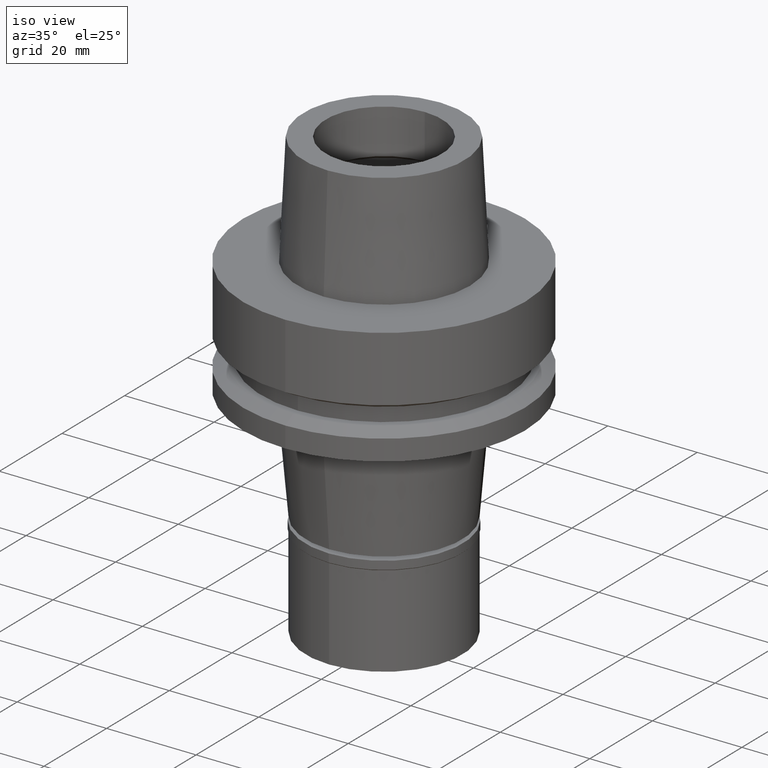
[diagram: clean part render]
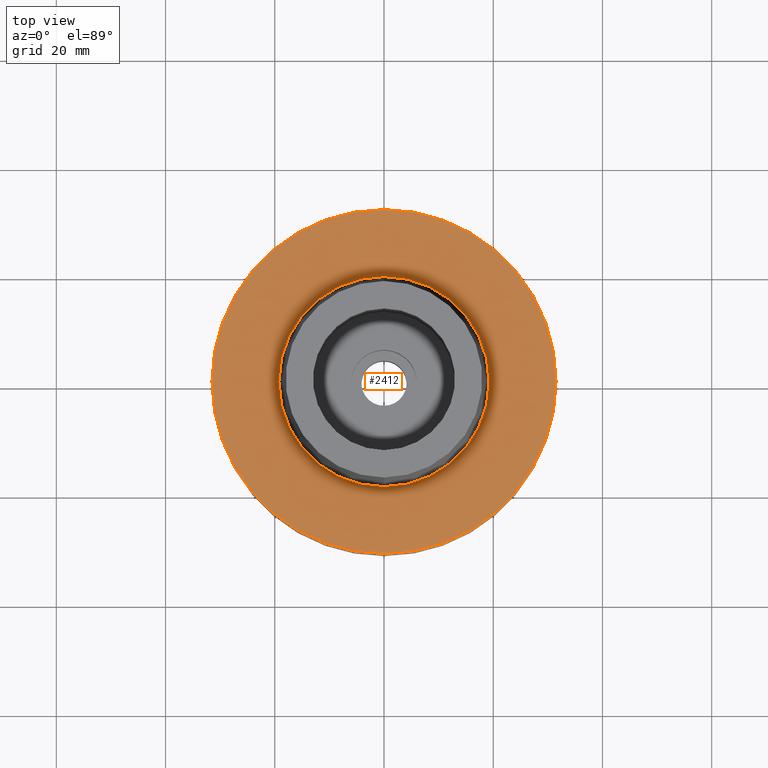
[diagram: tour spotlight — one face highlighted and labeled with its STEP entity id]
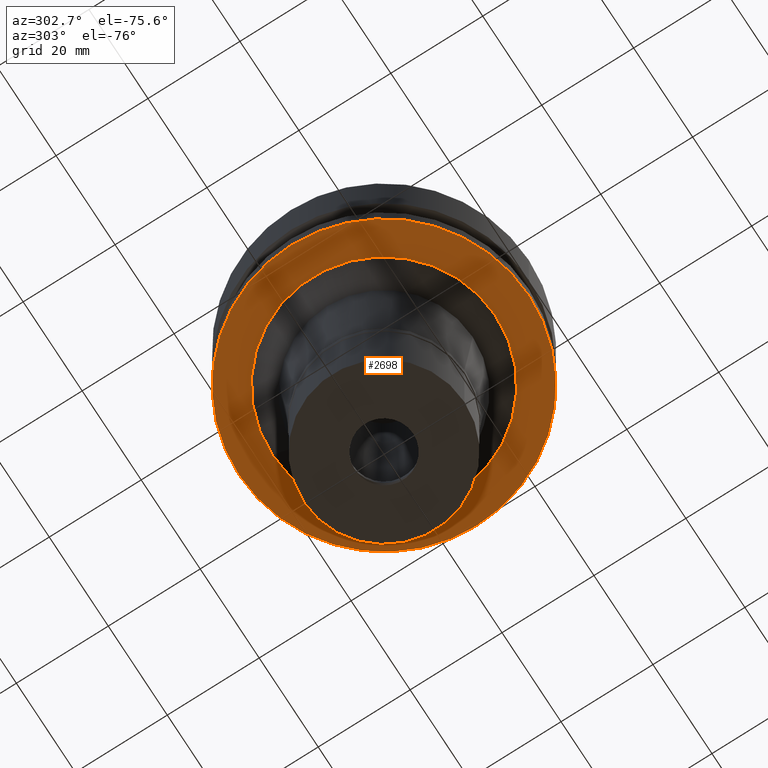
[diagram: tour spotlight — one face highlighted and labeled with its STEP entity id]
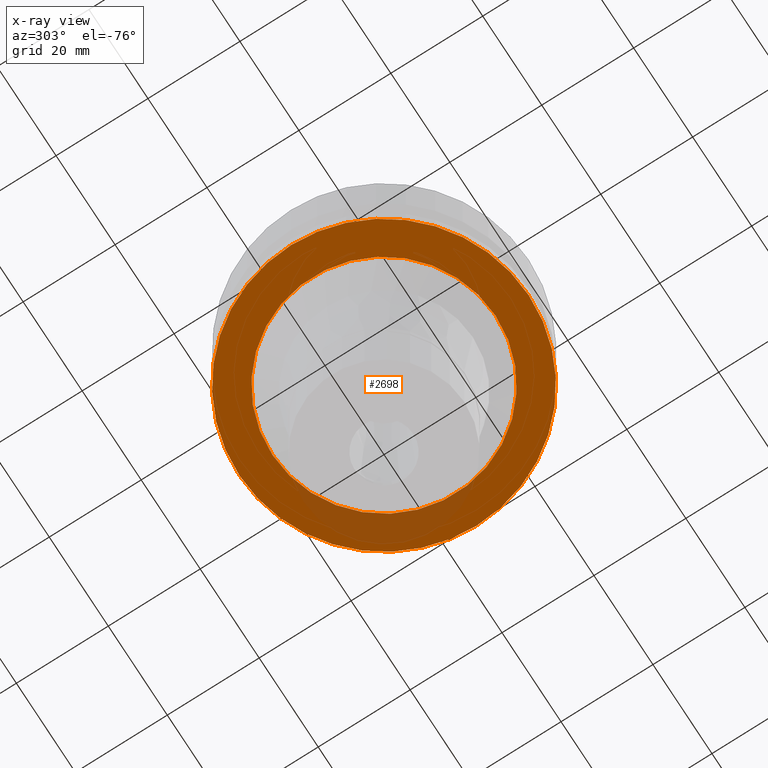
[diagram: x-ray of the same camera — body ghosted, this tour face saturated]
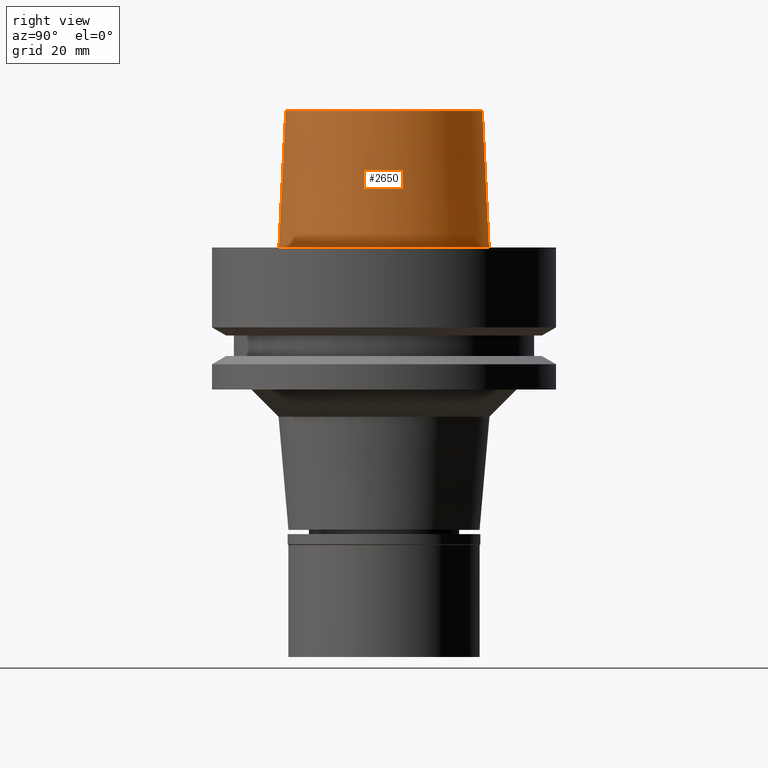
[diagram: tour spotlight — one face highlighted and labeled with its STEP entity id]
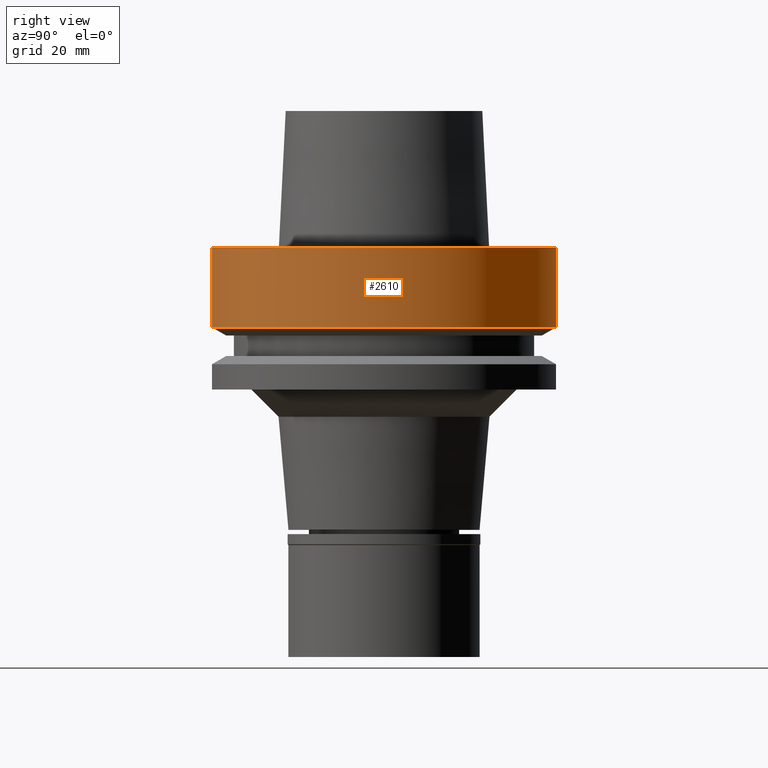
[diagram: tour spotlight — one face highlighted and labeled with its STEP entity id]
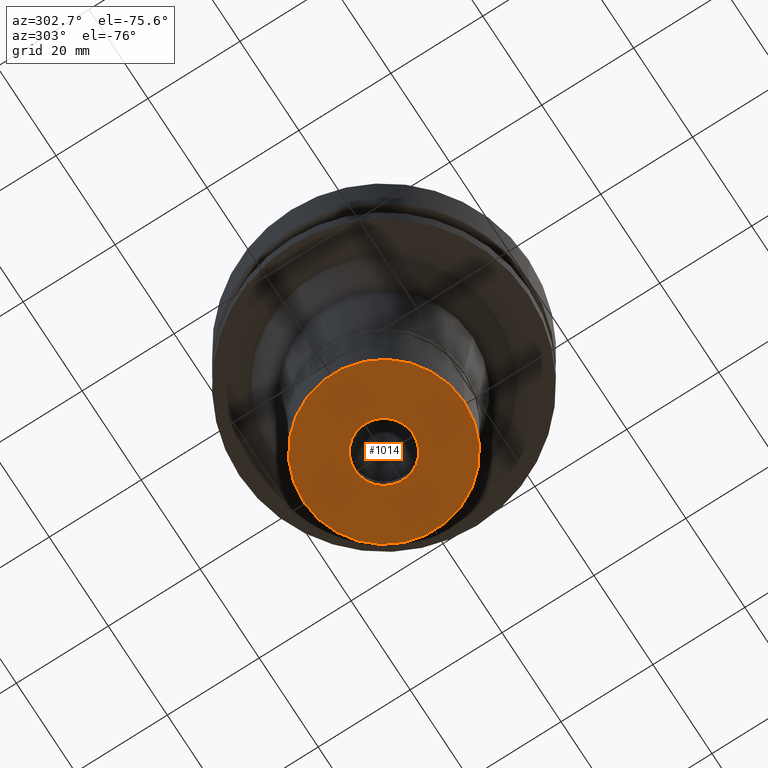
[diagram: tour spotlight — one face highlighted and labeled with its STEP entity id]
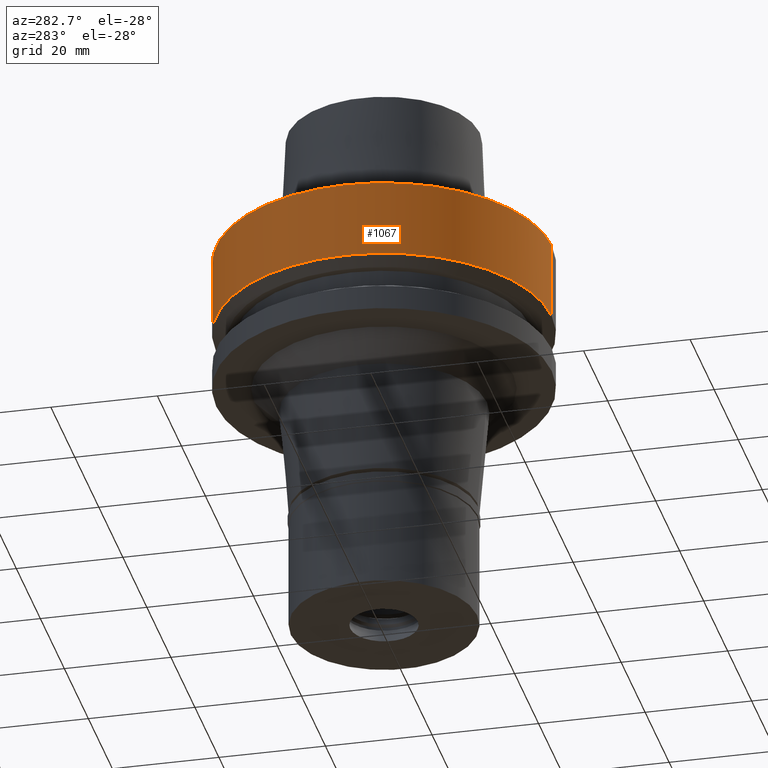
[diagram: tour spotlight — one face highlighted and labeled with its STEP entity id]
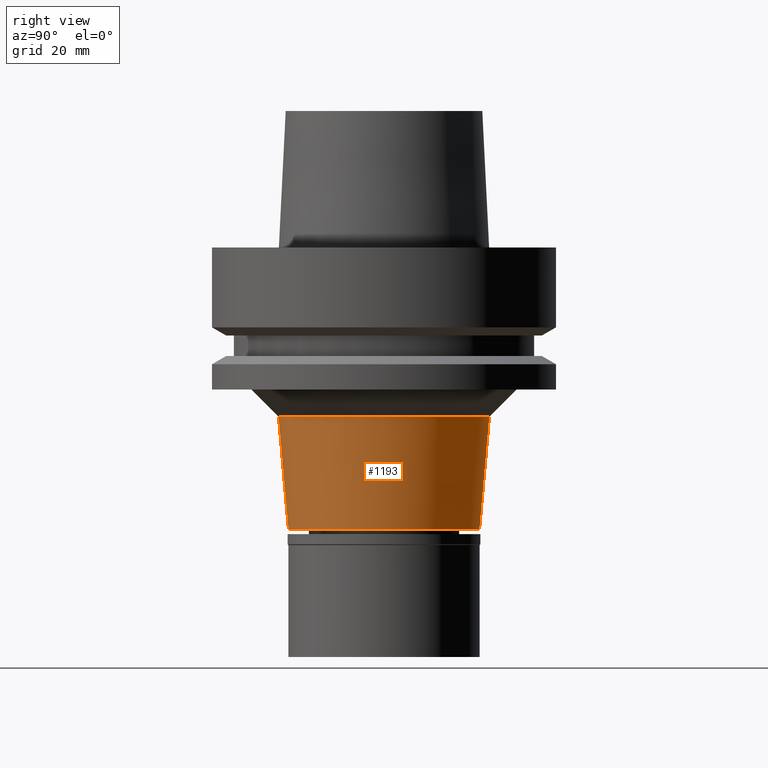
[diagram: tour spotlight — one face highlighted and labeled with its STEP entity id]
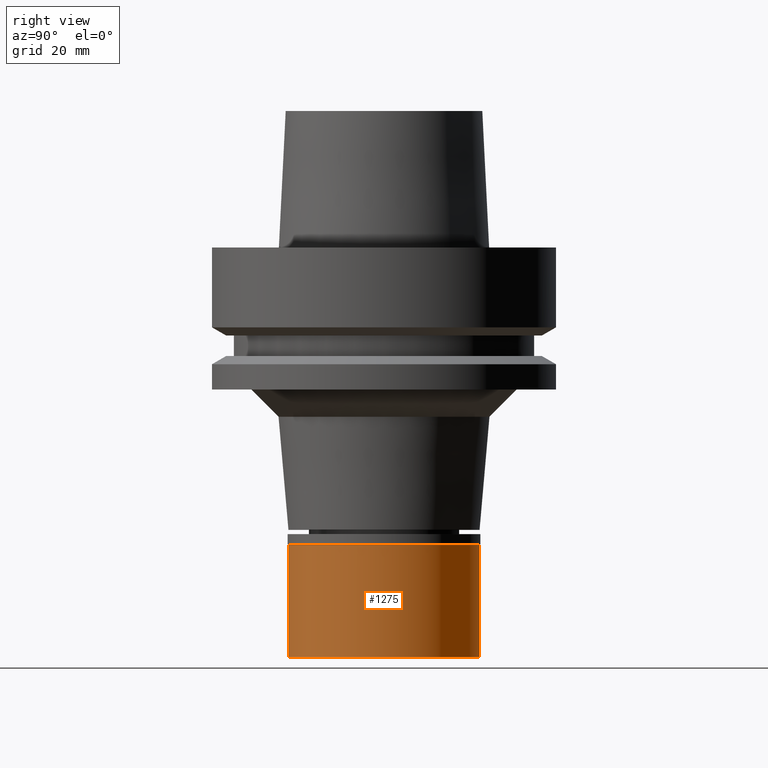
[diagram: tour spotlight — one face highlighted and labeled with its STEP entity id]
A machine part: a face-by-face anatomy tour. The part has 78 B-rep faces; the first image is the clean iso view, then the 8 largest visible faces are spotlighted one at a time (largest first), each with its STEP entity span.

Face 1 — top view, entity #2412. In plain terms, the highlighted planar face has unit normal (0, 0, 1).
Definition (entity closure, byte-faithful):
#88 = CIRCLE ( 'NONE', #2193, 19.24999954280000125 ) ;
#150 = EDGE_CURVE ( 'NONE', #1433, #2740, #2671, .T. ) ;
#153 = CARTESIAN_POINT ( 'NONE',  ( 0.0000000000000000000, 19.24999954280000125, 3.410605131648000255E-13 ) ) ;
#308 = AXIS2_PLACEMENT_3D ( 'NONE', #1915, #1468, #433 ) ;
#320 = DIRECTION ( 'NONE',  ( 0.0000000000000000000, 1.000000000000000000, 0.0000000000000000000 ) ) ;
#368 = FACE_OUTER_BOUND ( 'NONE', #726, .T. ) ;
#433 = DIRECTION ( 'NONE',  ( 0.0000000000000000000, -1.000000000000000000, 0.0000000000000000000 ) ) ;
#530 = DIRECTION ( 'NONE',  ( 0.0000000000000000000, 0.0000000000000000000, 1.000000000000000000 ) ) ;
#536 = ORIENTED_EDGE ( 'NONE', *, *, #2491, .F. ) ;
#726 = EDGE_LOOP ( 'NONE', ( #893, #536 ) ) ;
#736 = FACE_BOUND ( 'NONE', #1119, .T. ) ;
#761 = CARTESIAN_POINT ( 'NONE',  ( 0.0000000000000000000, -19.24999954280000125, 3.410605131648000255E-13 ) ) ;
#815 = CARTESIAN_POINT ( 'NONE',  ( 0.0000000000000000000, 0.0000000000000000000, 5.115907697473000027E-13 ) ) ;
#831 = CIRCLE ( 'NONE', #1571, 19.24999954280000125 ) ;
#893 = ORIENTED_EDGE ( 'NONE', *, *, #150, .F. ) ;
#1094 = EDGE_CURVE ( 'NONE', #1662, #1659, #88, .T. ) ;
#1103 = CARTESIAN_POINT ( 'NONE',  ( 0.0000000000000000000, -31.50000000000000000, 1.278976924367999843E-13 ) ) ;
#1119 = EDGE_LOOP ( 'NONE', ( #2495, #1585 ) ) ;
#1242 = PLANE ( 'NONE',  #2716 ) ;
#1356 = CARTESIAN_POINT ( 'NONE',  ( 0.0000000000000000000, 0.0000000000000000000, 1.278976924367999843E-13 ) ) ;
#1433 = VERTEX_POINT ( 'NONE', #2153 ) ;
#1448 = AXIS2_PLACEMENT_3D ( 'NONE', #1356, #1994, #2632 ) ;
#1468 = DIRECTION ( 'NONE',  ( 0.0000000000000000000, 0.0000000000000000000, -1.000000000000000000 ) ) ;
#1499 = EDGE_CURVE ( 'NONE', #1659, #1662, #831, .T. ) ;
#1555 = CARTESIAN_POINT ( 'NONE',  ( 0.0000000000000000000, 0.0000000000000000000, 5.115907697473000027E-13 ) ) ;
#1571 = AXIS2_PLACEMENT_3D ( 'NONE', #1555, #2409, #320 ) ;
#1585 = ORIENTED_EDGE ( 'NONE', *, *, #1094, .F. ) ;
#1659 = VERTEX_POINT ( 'NONE', #153 ) ;
#1662 = VERTEX_POINT ( 'NONE', #761 ) ;
#1868 = DIRECTION ( 'NONE',  ( 0.0000000000000000000, -1.000000000000000000, 0.0000000000000000000 ) ) ;
#1893 = DIRECTION ( 'NONE',  ( 0.0000000000000000000, 0.0000000000000000000, 1.000000000000000000 ) ) ;
#1915 = CARTESIAN_POINT ( 'NONE',  ( 0.0000000000000000000, 0.0000000000000000000, 1.278976924367999843E-13 ) ) ;
#1994 = DIRECTION ( 'NONE',  ( 0.0000000000000000000, 0.0000000000000000000, -1.000000000000000000 ) ) ;
#2091 = CARTESIAN_POINT ( 'NONE',  ( 0.0000000000000000000, 0.0000000000000000000, 0.0000000000000000000 ) ) ;
#2153 = CARTESIAN_POINT ( 'NONE',  ( 0.0000000000000000000, 31.50000000000000000, 1.278976924367999843E-13 ) ) ;
#2193 = AXIS2_PLACEMENT_3D ( 'NONE', #815, #1893, #1868 ) ;
#2250 = DIRECTION ( 'NONE',  ( 1.000000000000000000, 0.0000000000000000000, 0.0000000000000000000 ) ) ;
#2409 = DIRECTION ( 'NONE',  ( 0.0000000000000000000, 0.0000000000000000000, 1.000000000000000000 ) ) ;
#2412 = ADVANCED_FACE ( 'NONE', ( #368, #736 ), #1242, .T. ) ;
#2491 = EDGE_CURVE ( 'NONE', #2740, #1433, #2757, .T. ) ;
#2495 = ORIENTED_EDGE ( 'NONE', *, *, #1499, .F. ) ;
#2632 = DIRECTION ( 'NONE',  ( 0.0000000000000000000, 1.000000000000000000, 0.0000000000000000000 ) ) ;
#2671 = CIRCLE ( 'NONE', #1448, 31.50000000000000000 ) ;
#2716 = AXIS2_PLACEMENT_3D ( 'NONE', #2091, #530, #2250 ) ;
#2740 = VERTEX_POINT ( 'NONE', #1103 ) ;
#2757 = CIRCLE ( 'NONE', #308, 31.50000000000000000 ) ;

Face 2 — auxiliary view, entity #2698. An x-ray twin of the same camera follows (body ghosted, this face saturated) — the face is partly hidden behind the body. In plain terms, the highlighted planar face has unit normal (0, 0, 1).
Definition (entity closure, byte-faithful):
#22 = DIRECTION ( 'NONE',  ( 0.0000000000000000000, 0.0000000000000000000, 1.000000000000000000 ) ) ;
#35 = DIRECTION ( 'NONE',  ( 0.0000000000000000000, -1.000000000000000000, 0.0000000000000000000 ) ) ;
#60 = DIRECTION ( 'NONE',  ( 0.0000000000000000000, 0.0000000000000000000, -1.000000000000000000 ) ) ;
#126 = CARTESIAN_POINT ( 'NONE',  ( 0.0000000000000000000, 0.0000000000000000000, -26.00000000000000000 ) ) ;
#195 = VERTEX_POINT ( 'NONE', #1781 ) ;
#285 = EDGE_CURVE ( 'NONE', #556, #821, #2023, .T. ) ;
#455 = DIRECTION ( 'NONE',  ( 0.0000000000000000000, 0.0000000000000000000, 1.000000000000000000 ) ) ;
#465 = ORIENTED_EDGE ( 'NONE', *, *, #686, .F. ) ;
#556 = VERTEX_POINT ( 'NONE', #1785 ) ;
#610 = AXIS2_PLACEMENT_3D ( 'NONE', #126, #770, #2512 ) ;
#629 = CARTESIAN_POINT ( 'NONE',  ( 0.0000000000000000000, -31.50000000000000000, -26.00000000000000000 ) ) ;
#665 = PLANE ( 'NONE',  #2479 ) ;
#677 = DIRECTION ( 'NONE',  ( 0.0000000000000000000, 0.0000000000000000000, 1.000000000000000000 ) ) ;
#686 = EDGE_CURVE ( 'NONE', #195, #2562, #1229, .T. ) ;
#692 = CARTESIAN_POINT ( 'NONE',  ( 0.0000000000000000000, 0.0000000000000000000, -26.00000000000000000 ) ) ;
#710 = AXIS2_PLACEMENT_3D ( 'NONE', #1965, #60, #35 ) ;
#770 = DIRECTION ( 'NONE',  ( 0.0000000000000000000, 0.0000000000000000000, -1.000000000000000000 ) ) ;
#793 = AXIS2_PLACEMENT_3D ( 'NONE', #692, #677, #1577 ) ;
#821 = VERTEX_POINT ( 'NONE', #1823 ) ;
#1093 = CARTESIAN_POINT ( 'NONE',  ( 0.0000000000000000000, 0.0000000000000000000, -26.00000000000000000 ) ) ;
#1111 = ORIENTED_EDGE ( 'NONE', *, *, #285, .F. ) ;
#1229 = CIRCLE ( 'NONE', #2122, 31.50000000000000000 ) ;
#1290 = DIRECTION ( 'NONE',  ( 0.0000000000000000000, 1.000000000000000000, 0.0000000000000000000 ) ) ;
#1577 = DIRECTION ( 'NONE',  ( 0.0000000000000000000, -1.000000000000000000, 0.0000000000000000000 ) ) ;
#1712 = EDGE_LOOP ( 'NONE', ( #465, #1811 ) ) ;
#1781 = CARTESIAN_POINT ( 'NONE',  ( 0.0000000000000000000, 31.50000000000000000, -26.00000000000000000 ) ) ;
#1785 = CARTESIAN_POINT ( 'NONE',  ( 0.0000000000000000000, -24.31101533498999956, -26.00000000000000000 ) ) ;
#1811 = ORIENTED_EDGE ( 'NONE', *, *, #2710, .F. ) ;
#1823 = CARTESIAN_POINT ( 'NONE',  ( 0.0000000000000000000, 24.31101533498999956, -26.00000000000000000 ) ) ;
#1847 = ORIENTED_EDGE ( 'NONE', *, *, #2354, .F. ) ;
#1965 = CARTESIAN_POINT ( 'NONE',  ( 0.0000000000000000000, 0.0000000000000000000, -26.00000000000000000 ) ) ;
#2023 = CIRCLE ( 'NONE', #710, 24.31101533498999956 ) ;
#2122 = AXIS2_PLACEMENT_3D ( 'NONE', #1093, #22, #1290 ) ;
#2157 = CIRCLE ( 'NONE', #610, 24.31101533498999956 ) ;
#2181 = DIRECTION ( 'NONE',  ( 1.000000000000000000, 0.0000000000000000000, 0.0000000000000000000 ) ) ;
#2223 = FACE_BOUND ( 'NONE', #2772, .T. ) ;
#2354 = EDGE_CURVE ( 'NONE', #821, #556, #2157, .T. ) ;
#2431 = FACE_OUTER_BOUND ( 'NONE', #1712, .T. ) ;
#2479 = AXIS2_PLACEMENT_3D ( 'NONE', #2637, #455, #2181 ) ;
#2512 = DIRECTION ( 'NONE',  ( 0.0000000000000000000, 1.000000000000000000, 0.0000000000000000000 ) ) ;
#2562 = VERTEX_POINT ( 'NONE', #629 ) ;
#2637 = CARTESIAN_POINT ( 'NONE',  ( 0.0000000000000000000, 0.0000000000000000000, -26.00000000000000000 ) ) ;
#2667 = CIRCLE ( 'NONE', #793, 31.50000000000000000 ) ;
#2698 = ADVANCED_FACE ( 'NONE', ( #2431, #2223 ), #665, .F. ) ;
#2710 = EDGE_CURVE ( 'NONE', #2562, #195, #2667, .T. ) ;
#2772 = EDGE_LOOP ( 'NONE', ( #1847, #1111 ) ) ;

Face 3 — right view, entity #2650. In plain terms, the highlighted conical surface has half-angle 2.862 deg.
Definition (entity closure, byte-faithful):
#21 = CARTESIAN_POINT ( 'NONE',  ( 0.0000000000000000000, 0.0000000000000000000, 12.50000000000000000 ) ) ;
#88 = CIRCLE ( 'NONE', #2193, 19.24999954280000125 ) ;
#136 = EDGE_CURVE ( 'NONE', #1746, #2371, #1766, .T. ) ;
#153 = CARTESIAN_POINT ( 'NONE',  ( 0.0000000000000000000, 19.24999954280000125, 3.410605131648000255E-13 ) ) ;
#274 = LINE ( 'NONE', #509, #1283 ) ;
#509 = CARTESIAN_POINT ( 'NONE',  ( 0.0000000000000000000, -18.00000182882000033, 25.00000000000000000 ) ) ;
#534 = CARTESIAN_POINT ( 'NONE',  ( 0.0000000000000000000, 18.00000182882000033, 25.00000000000000000 ) ) ;
#735 = DIRECTION ( 'NONE',  ( 0.0000000000000000000, -0.04993752584486958745, -0.9987523434327917338 ) ) ;
#761 = CARTESIAN_POINT ( 'NONE',  ( 0.0000000000000000000, -19.24999954280000125, 3.410605131648000255E-13 ) ) ;
#815 = CARTESIAN_POINT ( 'NONE',  ( 0.0000000000000000000, 0.0000000000000000000, 5.115907697473000027E-13 ) ) ;
#860 = EDGE_CURVE ( 'NONE', #2371, #1662, #274, .T. ) ;
#1041 = EDGE_CURVE ( 'NONE', #1746, #1659, #2508, .T. ) ;
#1074 = FACE_OUTER_BOUND ( 'NONE', #1948, .T. ) ;
#1094 = EDGE_CURVE ( 'NONE', #1662, #1659, #88, .T. ) ;
#1146 = CARTESIAN_POINT ( 'NONE',  ( 0.0000000000000000000, 0.0000000000000000000, 25.00000000000000000 ) ) ;
#1215 = ORIENTED_EDGE ( 'NONE', *, *, #136, .T. ) ;
#1227 = DIRECTION ( 'NONE',  ( 0.0000000000000000000, 0.04993752584486958745, -0.9987523434327917338 ) ) ;
#1255 = VECTOR ( 'NONE', #1227, 999.9999999999998863 ) ;
#1283 = VECTOR ( 'NONE', #735, 999.9999999999998863 ) ;
#1628 = AXIS2_PLACEMENT_3D ( 'NONE', #1146, #2209, #2423 ) ;
#1647 = CARTESIAN_POINT ( 'NONE',  ( 0.0000000000000000000, 18.00000182882000033, 25.00000000000000000 ) ) ;
#1659 = VERTEX_POINT ( 'NONE', #153 ) ;
#1662 = VERTEX_POINT ( 'NONE', #761 ) ;
#1675 = CONICAL_SURFACE ( 'NONE', #2614, 18.62500068580999724, 0.04995830450907576964 ) ;
#1742 = DIRECTION ( 'NONE',  ( 0.0000000000000000000, 0.0000000000000000000, -1.000000000000000000 ) ) ;
#1746 = VERTEX_POINT ( 'NONE', #534 ) ;
#1766 = CIRCLE ( 'NONE', #1628, 18.00000182882000033 ) ;
#1828 = ORIENTED_EDGE ( 'NONE', *, *, #1094, .T. ) ;
#1868 = DIRECTION ( 'NONE',  ( 0.0000000000000000000, -1.000000000000000000, 0.0000000000000000000 ) ) ;
#1893 = DIRECTION ( 'NONE',  ( 0.0000000000000000000, 0.0000000000000000000, 1.000000000000000000 ) ) ;
#1948 = EDGE_LOOP ( 'NONE', ( #1215, #2269, #1828, #2699 ) ) ;
#2193 = AXIS2_PLACEMENT_3D ( 'NONE', #815, #1893, #1868 ) ;
#2209 = DIRECTION ( 'NONE',  ( 0.0000000000000000000, 0.0000000000000000000, -1.000000000000000000 ) ) ;
#2269 = ORIENTED_EDGE ( 'NONE', *, *, #860, .T. ) ;
#2371 = VERTEX_POINT ( 'NONE', #2720 ) ;
#2423 = DIRECTION ( 'NONE',  ( 0.0000000000000000000, 1.000000000000000000, 0.0000000000000000000 ) ) ;
#2508 = LINE ( 'NONE', #1647, #1255 ) ;
#2594 = DIRECTION ( 'NONE',  ( 0.0000000000000000000, -1.000000000000000000, 0.0000000000000000000 ) ) ;
#2614 = AXIS2_PLACEMENT_3D ( 'NONE', #21, #1742, #2594 ) ;
#2650 = ADVANCED_FACE ( 'NONE', ( #1074 ), #1675, .T. ) ;
#2699 = ORIENTED_EDGE ( 'NONE', *, *, #1041, .F. ) ;
#2720 = CARTESIAN_POINT ( 'NONE',  ( 0.0000000000000000000, -18.00000182882000033, 25.00000000000000000 ) ) ;

Face 4 — right view, entity #2610. In plain terms, the highlighted cylindrical surface (partial cylindrical patch) has radius 31.5 mm, axis along (0, 0, 1).
Definition (entity closure, byte-faithful):
#150 = EDGE_CURVE ( 'NONE', #1433, #2740, #2671, .T. ) ;
#203 = CYLINDRICAL_SURFACE ( 'NONE', #1932, 31.50000000000000000 ) ;
#240 = DIRECTION ( 'NONE',  ( 0.0000000000000000000, 1.000000000000000000, 0.0000000000000000000 ) ) ;
#347 = VECTOR ( 'NONE', #1151, 1000.000000000000000 ) ;
#424 = CARTESIAN_POINT ( 'NONE',  ( 0.0000000000000000000, -31.50000000000000000, 7.579122514774000189E-14 ) ) ;
#511 = ORIENTED_EDGE ( 'NONE', *, *, #1998, .T. ) ;
#561 = AXIS2_PLACEMENT_3D ( 'NONE', #2130, #640, #1918 ) ;
#635 = ORIENTED_EDGE ( 'NONE', *, *, #150, .T. ) ;
#640 = DIRECTION ( 'NONE',  ( 0.0000000000000000000, 0.0000000000000000000, 1.000000000000000000 ) ) ;
#817 = LINE ( 'NONE', #424, #1305 ) ;
#826 = DIRECTION ( 'NONE',  ( 0.0000000000000000000, 0.0000000000000000000, 1.000000000000000000 ) ) ;
#998 = ORIENTED_EDGE ( 'NONE', *, *, #1532, .F. ) ;
#1000 = VERTEX_POINT ( 'NONE', #1191 ) ;
#1021 = CIRCLE ( 'NONE', #561, 31.50000000000000000 ) ;
#1103 = CARTESIAN_POINT ( 'NONE',  ( 0.0000000000000000000, -31.50000000000000000, 1.278976924367999843E-13 ) ) ;
#1136 = LINE ( 'NONE', #1616, #347 ) ;
#1151 = DIRECTION ( 'NONE',  ( 0.0000000000000000000, 4.130355870612999632E-14, -1.000000000000000000 ) ) ;
#1191 = CARTESIAN_POINT ( 'NONE',  ( 0.0000000000000000000, -31.50000000000000000, -14.62250092523999889 ) ) ;
#1305 = VECTOR ( 'NONE', #1744, 1000.000000000000000 ) ;
#1356 = CARTESIAN_POINT ( 'NONE',  ( 0.0000000000000000000, 0.0000000000000000000, 1.278976924367999843E-13 ) ) ;
#1433 = VERTEX_POINT ( 'NONE', #2153 ) ;
#1448 = AXIS2_PLACEMENT_3D ( 'NONE', #1356, #1994, #2632 ) ;
#1532 = EDGE_CURVE ( 'NONE', #1433, #2025, #1136, .T. ) ;
#1540 = CARTESIAN_POINT ( 'NONE',  ( 0.0000000000000000000, 31.50000000000000000, -14.62250092523999889 ) ) ;
#1616 = CARTESIAN_POINT ( 'NONE',  ( 0.0000000000000000000, 31.50000000000000000, 7.579122514774000189E-14 ) ) ;
#1744 = DIRECTION ( 'NONE',  ( 0.0000000000000000000, -4.130355870612999632E-14, -1.000000000000000000 ) ) ;
#1839 = EDGE_CURVE ( 'NONE', #1000, #2025, #1021, .T. ) ;
#1918 = DIRECTION ( 'NONE',  ( 0.0000000000000000000, -1.000000000000000000, 0.0000000000000000000 ) ) ;
#1932 = AXIS2_PLACEMENT_3D ( 'NONE', #2785, #826, #240 ) ;
#1994 = DIRECTION ( 'NONE',  ( 0.0000000000000000000, 0.0000000000000000000, -1.000000000000000000 ) ) ;
#1998 = EDGE_CURVE ( 'NONE', #2740, #1000, #817, .T. ) ;
#2025 = VERTEX_POINT ( 'NONE', #1540 ) ;
#2117 = ORIENTED_EDGE ( 'NONE', *, *, #1839, .T. ) ;
#2125 = FACE_OUTER_BOUND ( 'NONE', #2442, .T. ) ;
#2130 = CARTESIAN_POINT ( 'NONE',  ( 0.0000000000000000000, 0.0000000000000000000, -14.62250092523999889 ) ) ;
#2153 = CARTESIAN_POINT ( 'NONE',  ( 0.0000000000000000000, 31.50000000000000000, 1.278976924367999843E-13 ) ) ;
#2442 = EDGE_LOOP ( 'NONE', ( #635, #511, #2117, #998 ) ) ;
#2610 = ADVANCED_FACE ( 'NONE', ( #2125 ), #203, .T. ) ;
#2632 = DIRECTION ( 'NONE',  ( 0.0000000000000000000, 1.000000000000000000, 0.0000000000000000000 ) ) ;
#2671 = CIRCLE ( 'NONE', #1448, 31.50000000000000000 ) ;
#2740 = VERTEX_POINT ( 'NONE', #1103 ) ;
#2785 = CARTESIAN_POINT ( 'NONE',  ( 0.0000000000000000000, 0.0000000000000000000, -72.96500000000000341 ) ) ;

Face 5 — auxiliary view, entity #1014. In plain terms, the highlighted planar face has unit normal (0, 0, -1).
Definition (entity closure, byte-faithful):
#75 = DIRECTION ( 'NONE',  ( 0.0000000000000000000, 0.0000000000000000000, -1.000000000000000000 ) ) ;
#102 = CIRCLE ( 'NONE', #1677, 6.349999999998999556 ) ;
#159 = FACE_BOUND ( 'NONE', #1268, .T. ) ;
#202 = VERTEX_POINT ( 'NONE', #1108 ) ;
#255 = EDGE_CURVE ( 'NONE', #1921, #298, #102, .T. ) ;
#298 = VERTEX_POINT ( 'NONE', #1567 ) ;
#331 = ORIENTED_EDGE ( 'NONE', *, *, #255, .F. ) ;
#337 = DIRECTION ( 'NONE',  ( 0.0000000000000000000, -1.000000000000000000, 0.0000000000000000000 ) ) ;
#469 = CARTESIAN_POINT ( 'NONE',  ( 0.0000000000000000000, 0.0000000000000000000, -22.50000000000000000 ) ) ;
#553 = EDGE_CURVE ( 'NONE', #202, #2254, #1815, .T. ) ;
#683 = DIRECTION ( 'NONE',  ( 0.0000000000000000000, 1.000000000000000000, 0.0000000000000000000 ) ) ;
#755 = FACE_OUTER_BOUND ( 'NONE', #2741, .T. ) ;
#760 = AXIS2_PLACEMENT_3D ( 'NONE', #2275, #780, #337 ) ;
#780 = DIRECTION ( 'NONE',  ( 0.0000000000000000000, 0.0000000000000000000, -1.000000000000000000 ) ) ;
#879 = CARTESIAN_POINT ( 'NONE',  ( 0.0000000000000000000, -17.50000000000000000, -22.50000000000000000 ) ) ;
#901 = DIRECTION ( 'NONE',  ( 0.0000000000000000000, 1.000000000000000000, 0.0000000000000000000 ) ) ;
#965 = AXIS2_PLACEMENT_3D ( 'NONE', #2626, #1843, #1228 ) ;
#1014 = ADVANCED_FACE ( 'NONE', ( #755, #159 ), #2494, .T. ) ;
#1108 = CARTESIAN_POINT ( 'NONE',  ( 0.0000000000000000000, 17.50000000000000000, -22.50000000000000000 ) ) ;
#1228 = DIRECTION ( 'NONE',  ( 0.0000000000000000000, -1.000000000000000000, 0.0000000000000000000 ) ) ;
#1268 = EDGE_LOOP ( 'NONE', ( #331, #1702 ) ) ;
#1387 = EDGE_CURVE ( 'NONE', #2254, #202, #2337, .T. ) ;
#1550 = DIRECTION ( 'NONE',  ( 0.0000000000000000000, -1.000000000000000000, 0.0000000000000000000 ) ) ;
#1567 = CARTESIAN_POINT ( 'NONE',  ( 0.0000000000000000000, -6.349999999998999556, -22.50000000000000000 ) ) ;
#1670 = CIRCLE ( 'NONE', #1896, 6.349999999998999556 ) ;
#1677 = AXIS2_PLACEMENT_3D ( 'NONE', #2613, #2642, #683 ) ;
#1702 = ORIENTED_EDGE ( 'NONE', *, *, #2075, .F. ) ;
#1756 = CARTESIAN_POINT ( 'NONE',  ( 0.0000000000000000000, 0.0000000000000000000, -22.50000000000000000 ) ) ;
#1815 = CIRCLE ( 'NONE', #1904, 17.50000000000000000 ) ;
#1843 = DIRECTION ( 'NONE',  ( 0.0000000000000000000, 0.0000000000000000000, 1.000000000000000000 ) ) ;
#1896 = AXIS2_PLACEMENT_3D ( 'NONE', #469, #75, #1550 ) ;
#1904 = AXIS2_PLACEMENT_3D ( 'NONE', #1756, #2618, #901 ) ;
#1921 = VERTEX_POINT ( 'NONE', #2360 ) ;
#2075 = EDGE_CURVE ( 'NONE', #298, #1921, #1670, .T. ) ;
#2079 = ORIENTED_EDGE ( 'NONE', *, *, #553, .F. ) ;
#2179 = ORIENTED_EDGE ( 'NONE', *, *, #1387, .F. ) ;
#2254 = VERTEX_POINT ( 'NONE', #879 ) ;
#2275 = CARTESIAN_POINT ( 'NONE',  ( 0.0000000000000000000, 0.0000000000000000000, -22.50000000000000000 ) ) ;
#2337 = CIRCLE ( 'NONE', #965, 17.50000000000000000 ) ;
#2360 = CARTESIAN_POINT ( 'NONE',  ( 0.0000000000000000000, 6.349999999998999556, -22.50000000000000000 ) ) ;
#2494 = PLANE ( 'NONE',  #760 ) ;
#2613 = CARTESIAN_POINT ( 'NONE',  ( 0.0000000000000000000, 0.0000000000000000000, -22.50000000000000000 ) ) ;
#2618 = DIRECTION ( 'NONE',  ( 0.0000000000000000000, 0.0000000000000000000, 1.000000000000000000 ) ) ;
#2626 = CARTESIAN_POINT ( 'NONE',  ( 0.0000000000000000000, 0.0000000000000000000, -22.50000000000000000 ) ) ;
#2642 = DIRECTION ( 'NONE',  ( 0.0000000000000000000, 0.0000000000000000000, -1.000000000000000000 ) ) ;
#2741 = EDGE_LOOP ( 'NONE', ( #2079, #2179 ) ) ;

Face 6 — auxiliary view, entity #1067. In plain terms, the highlighted cylindrical surface (partial cylindrical patch) has radius 31.5 mm, axis along (0, 0, 1).
Definition (entity closure, byte-faithful):
#171 = DIRECTION ( 'NONE',  ( 0.0000000000000000000, 0.0000000000000000000, 1.000000000000000000 ) ) ;
#308 = AXIS2_PLACEMENT_3D ( 'NONE', #1915, #1468, #433 ) ;
#327 = EDGE_CURVE ( 'NONE', #2025, #1000, #1942, .T. ) ;
#347 = VECTOR ( 'NONE', #1151, 1000.000000000000000 ) ;
#369 = CYLINDRICAL_SURFACE ( 'NONE', #1889, 31.50000000000000000 ) ;
#424 = CARTESIAN_POINT ( 'NONE',  ( 0.0000000000000000000, -31.50000000000000000, 7.579122514774000189E-14 ) ) ;
#433 = DIRECTION ( 'NONE',  ( 0.0000000000000000000, -1.000000000000000000, 0.0000000000000000000 ) ) ;
#454 = EDGE_LOOP ( 'NONE', ( #2090, #1480, #1422, #2402 ) ) ;
#720 = DIRECTION ( 'NONE',  ( 0.0000000000000000000, 1.000000000000000000, 0.0000000000000000000 ) ) ;
#817 = LINE ( 'NONE', #424, #1305 ) ;
#1000 = VERTEX_POINT ( 'NONE', #1191 ) ;
#1012 = DIRECTION ( 'NONE',  ( 0.0000000000000000000, 1.000000000000000000, 0.0000000000000000000 ) ) ;
#1067 = ADVANCED_FACE ( 'NONE', ( #2775 ), #369, .T. ) ;
#1103 = CARTESIAN_POINT ( 'NONE',  ( 0.0000000000000000000, -31.50000000000000000, 1.278976924367999843E-13 ) ) ;
#1136 = LINE ( 'NONE', #1616, #347 ) ;
#1149 = DIRECTION ( 'NONE',  ( 0.0000000000000000000, 0.0000000000000000000, 1.000000000000000000 ) ) ;
#1151 = DIRECTION ( 'NONE',  ( 0.0000000000000000000, 4.130355870612999632E-14, -1.000000000000000000 ) ) ;
#1191 = CARTESIAN_POINT ( 'NONE',  ( 0.0000000000000000000, -31.50000000000000000, -14.62250092523999889 ) ) ;
#1305 = VECTOR ( 'NONE', #1744, 1000.000000000000000 ) ;
#1371 = CARTESIAN_POINT ( 'NONE',  ( 0.0000000000000000000, 0.0000000000000000000, -14.62250092523999889 ) ) ;
#1422 = ORIENTED_EDGE ( 'NONE', *, *, #2491, .T. ) ;
#1433 = VERTEX_POINT ( 'NONE', #2153 ) ;
#1468 = DIRECTION ( 'NONE',  ( 0.0000000000000000000, 0.0000000000000000000, -1.000000000000000000 ) ) ;
#1480 = ORIENTED_EDGE ( 'NONE', *, *, #1998, .F. ) ;
#1532 = EDGE_CURVE ( 'NONE', #1433, #2025, #1136, .T. ) ;
#1540 = CARTESIAN_POINT ( 'NONE',  ( 0.0000000000000000000, 31.50000000000000000, -14.62250092523999889 ) ) ;
#1616 = CARTESIAN_POINT ( 'NONE',  ( 0.0000000000000000000, 31.50000000000000000, 7.579122514774000189E-14 ) ) ;
#1688 = CARTESIAN_POINT ( 'NONE',  ( 0.0000000000000000000, 0.0000000000000000000, -72.96500000000000341 ) ) ;
#1744 = DIRECTION ( 'NONE',  ( 0.0000000000000000000, -4.130355870612999632E-14, -1.000000000000000000 ) ) ;
#1889 = AXIS2_PLACEMENT_3D ( 'NONE', #1688, #171, #1012 ) ;
#1915 = CARTESIAN_POINT ( 'NONE',  ( 0.0000000000000000000, 0.0000000000000000000, 1.278976924367999843E-13 ) ) ;
#1942 = CIRCLE ( 'NONE', #2767, 31.50000000000000000 ) ;
#1998 = EDGE_CURVE ( 'NONE', #2740, #1000, #817, .T. ) ;
#2025 = VERTEX_POINT ( 'NONE', #1540 ) ;
#2090 = ORIENTED_EDGE ( 'NONE', *, *, #327, .T. ) ;
#2153 = CARTESIAN_POINT ( 'NONE',  ( 0.0000000000000000000, 31.50000000000000000, 1.278976924367999843E-13 ) ) ;
#2402 = ORIENTED_EDGE ( 'NONE', *, *, #1532, .T. ) ;
#2491 = EDGE_CURVE ( 'NONE', #2740, #1433, #2757, .T. ) ;
#2740 = VERTEX_POINT ( 'NONE', #1103 ) ;
#2757 = CIRCLE ( 'NONE', #308, 31.50000000000000000 ) ;
#2767 = AXIS2_PLACEMENT_3D ( 'NONE', #1371, #1149, #720 ) ;
#2775 = FACE_OUTER_BOUND ( 'NONE', #454, .T. ) ;

Face 7 — right view, entity #1193. In plain terms, the highlighted conical surface has half-angle 5 deg.
Definition (entity closure, byte-faithful):
#38 = ORIENTED_EDGE ( 'NONE', *, *, #2415, .T. ) ;
#56 = CIRCLE ( 'NONE', #2393, 19.31101533497999867 ) ;
#118 = DIRECTION ( 'NONE',  ( 0.0000000000000000000, -1.000000000000000000, 0.0000000000000000000 ) ) ;
#142 = VECTOR ( 'NONE', #1833, 1000.000000000000114 ) ;
#170 = LINE ( 'NONE', #338, #142 ) ;
#210 = ORIENTED_EDGE ( 'NONE', *, *, #2458, .T. ) ;
#338 = CARTESIAN_POINT ( 'NONE',  ( 0.0000000000000000000, -19.31101533499000311, -31.00000000000000000 ) ) ;
#355 = CARTESIAN_POINT ( 'NONE',  ( 0.0000000000000000000, -19.31101533499000311, -31.00000000000000000 ) ) ;
#484 = CARTESIAN_POINT ( 'NONE',  ( 0.0000000000000000000, 0.0000000000000000000, -31.00000000000000000 ) ) ;
#544 = CARTESIAN_POINT ( 'NONE',  ( 0.0000000000000000000, 0.0000000000000000000, -51.70000000000000284 ) ) ;
#546 = CARTESIAN_POINT ( 'NONE',  ( 0.0000000000000000000, 17.50000000000000000, -51.70000000000000284 ) ) ;
#643 = AXIS2_PLACEMENT_3D ( 'NONE', #904, #2622, #687 ) ;
#670 = LINE ( 'NONE', #1588, #2752 ) ;
#687 = DIRECTION ( 'NONE',  ( 0.0000000000000000000, 1.000000000000000000, 0.0000000000000000000 ) ) ;
#873 = VERTEX_POINT ( 'NONE', #1610 ) ;
#902 = EDGE_CURVE ( 'NONE', #2300, #1129, #56, .T. ) ;
#904 = CARTESIAN_POINT ( 'NONE',  ( 0.0000000000000000000, 0.0000000000000000000, -41.34999999999999432 ) ) ;
#954 = DIRECTION ( 'NONE',  ( 0.0000000000000000000, -0.08715574274776323460, -0.9961946980917363303 ) ) ;
#977 = EDGE_LOOP ( 'NONE', ( #2542, #38, #210, #1044 ) ) ;
#1044 = ORIENTED_EDGE ( 'NONE', *, *, #1482, .F. ) ;
#1129 = VERTEX_POINT ( 'NONE', #1648 ) ;
#1145 = DIRECTION ( 'NONE',  ( 0.0000000000000000000, -1.000000000000000000, 0.0000000000000000000 ) ) ;
#1193 = ADVANCED_FACE ( 'NONE', ( #2219 ), #2750, .T. ) ;
#1414 = DIRECTION ( 'NONE',  ( 0.0000000000000000000, 0.0000000000000000000, 1.000000000000000000 ) ) ;
#1482 = EDGE_CURVE ( 'NONE', #1129, #1699, #670, .T. ) ;
#1490 = CIRCLE ( 'NONE', #1724, 17.50000000000000000 ) ;
#1588 = CARTESIAN_POINT ( 'NONE',  ( 0.0000000000000000000, 19.31101533499000311, -31.00000000000000000 ) ) ;
#1610 = CARTESIAN_POINT ( 'NONE',  ( 0.0000000000000000000, -17.50000000000000000, -51.70000000000000284 ) ) ;
#1648 = CARTESIAN_POINT ( 'NONE',  ( 0.0000000000000000000, 19.31101533499000311, -31.00000000000000000 ) ) ;
#1699 = VERTEX_POINT ( 'NONE', #546 ) ;
#1724 = AXIS2_PLACEMENT_3D ( 'NONE', #544, #1414, #118 ) ;
#1833 = DIRECTION ( 'NONE',  ( 0.0000000000000000000, 0.08715574274776323460, -0.9961946980917363303 ) ) ;
#2219 = FACE_OUTER_BOUND ( 'NONE', #977, .T. ) ;
#2224 = DIRECTION ( 'NONE',  ( 0.0000000000000000000, 0.0000000000000000000, 1.000000000000000000 ) ) ;
#2300 = VERTEX_POINT ( 'NONE', #355 ) ;
#2393 = AXIS2_PLACEMENT_3D ( 'NONE', #484, #2224, #1145 ) ;
#2415 = EDGE_CURVE ( 'NONE', #2300, #873, #170, .T. ) ;
#2458 = EDGE_CURVE ( 'NONE', #873, #1699, #1490, .T. ) ;
#2542 = ORIENTED_EDGE ( 'NONE', *, *, #902, .F. ) ;
#2622 = DIRECTION ( 'NONE',  ( 0.0000000000000000000, 0.0000000000000000000, 1.000000000000000000 ) ) ;
#2750 = CONICAL_SURFACE ( 'NONE', #643, 18.40550766749000289, 0.08726646259969973729 ) ;
#2752 = VECTOR ( 'NONE', #954, 1000.000000000000114 ) ;

Face 8 — right view, entity #1275. In plain terms, the highlighted cylindrical surface (partial cylindrical patch) has radius 17.5 mm, axis along (0, 0, -1).
Definition (entity closure, byte-faithful):
#18 = EDGE_CURVE ( 'NONE', #2728, #187, #2483, .T. ) ;
#25 = DIRECTION ( 'NONE',  ( 0.0000000000000000000, 1.000000000000000000, 0.0000000000000000000 ) ) ;
#92 = CARTESIAN_POINT ( 'NONE',  ( 0.0000000000000000000, -17.50000000000000000, -2.000000000000000000 ) ) ;
#187 = VERTEX_POINT ( 'NONE', #92 ) ;
#202 = VERTEX_POINT ( 'NONE', #1108 ) ;
#249 = LINE ( 'NONE', #292, #439 ) ;
#253 = CARTESIAN_POINT ( 'NONE',  ( 0.0000000000000000000, 17.50000000000000000, -2.000000000000000000 ) ) ;
#260 = EDGE_CURVE ( 'NONE', #187, #2254, #249, .T. ) ;
#292 = CARTESIAN_POINT ( 'NONE',  ( 0.0000000000000000000, -17.50000000000000000, -2.000000000000000000 ) ) ;
#386 = LINE ( 'NONE', #806, #967 ) ;
#439 = VECTOR ( 'NONE', #868, 1000.000000000000000 ) ;
#498 = ORIENTED_EDGE ( 'NONE', *, *, #1387, .T. ) ;
#582 = DIRECTION ( 'NONE',  ( 0.0000000000000000000, -1.000000000000000000, 0.0000000000000000000 ) ) ;
#586 = ORIENTED_EDGE ( 'NONE', *, *, #260, .T. ) ;
#806 = CARTESIAN_POINT ( 'NONE',  ( 0.0000000000000000000, 17.50000000000000000, -2.000000000000000000 ) ) ;
#868 = DIRECTION ( 'NONE',  ( 0.0000000000000000000, 0.0000000000000000000, -1.000000000000000000 ) ) ;
#879 = CARTESIAN_POINT ( 'NONE',  ( 0.0000000000000000000, -17.50000000000000000, -22.50000000000000000 ) ) ;
#965 = AXIS2_PLACEMENT_3D ( 'NONE', #2626, #1843, #1228 ) ;
#967 = VECTOR ( 'NONE', #1883, 1000.000000000000000 ) ;
#1108 = CARTESIAN_POINT ( 'NONE',  ( 0.0000000000000000000, 17.50000000000000000, -22.50000000000000000 ) ) ;
#1122 = AXIS2_PLACEMENT_3D ( 'NONE', #1946, #1775, #25 ) ;
#1127 = FACE_OUTER_BOUND ( 'NONE', #2745, .T. ) ;
#1228 = DIRECTION ( 'NONE',  ( 0.0000000000000000000, -1.000000000000000000, 0.0000000000000000000 ) ) ;
#1264 = DIRECTION ( 'NONE',  ( 0.0000000000000000000, 0.0000000000000000000, -1.000000000000000000 ) ) ;
#1275 = ADVANCED_FACE ( 'NONE', ( #1127 ), #2207, .T. ) ;
#1387 = EDGE_CURVE ( 'NONE', #2254, #202, #2337, .T. ) ;
#1424 = ORIENTED_EDGE ( 'NONE', *, *, #18, .T. ) ;
#1696 = EDGE_CURVE ( 'NONE', #2728, #202, #386, .T. ) ;
#1775 = DIRECTION ( 'NONE',  ( 0.0000000000000000000, 0.0000000000000000000, -1.000000000000000000 ) ) ;
#1843 = DIRECTION ( 'NONE',  ( 0.0000000000000000000, 0.0000000000000000000, 1.000000000000000000 ) ) ;
#1882 = ORIENTED_EDGE ( 'NONE', *, *, #1696, .F. ) ;
#1883 = DIRECTION ( 'NONE',  ( 0.0000000000000000000, 0.0000000000000000000, -1.000000000000000000 ) ) ;
#1946 = CARTESIAN_POINT ( 'NONE',  ( 0.0000000000000000000, 0.0000000000000000000, -2.000000000000000000 ) ) ;
#2104 = AXIS2_PLACEMENT_3D ( 'NONE', #2433, #1264, #582 ) ;
#2207 = CYLINDRICAL_SURFACE ( 'NONE', #2104, 17.50000000000000000 ) ;
#2254 = VERTEX_POINT ( 'NONE', #879 ) ;
#2337 = CIRCLE ( 'NONE', #965, 17.50000000000000000 ) ;
#2433 = CARTESIAN_POINT ( 'NONE',  ( 0.0000000000000000000, 0.0000000000000000000, 0.0000000000000000000 ) ) ;
#2483 = CIRCLE ( 'NONE', #1122, 17.50000000000000000 ) ;
#2626 = CARTESIAN_POINT ( 'NONE',  ( 0.0000000000000000000, 0.0000000000000000000, -22.50000000000000000 ) ) ;
#2728 = VERTEX_POINT ( 'NONE', #253 ) ;
#2745 = EDGE_LOOP ( 'NONE', ( #1424, #586, #498, #1882 ) ) ;